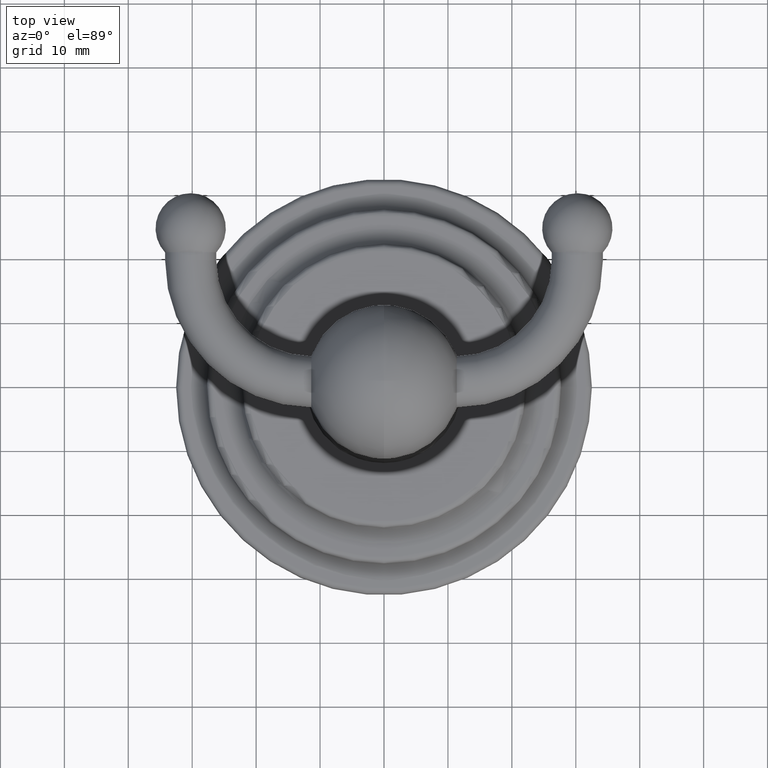
[diagram: clean part render]
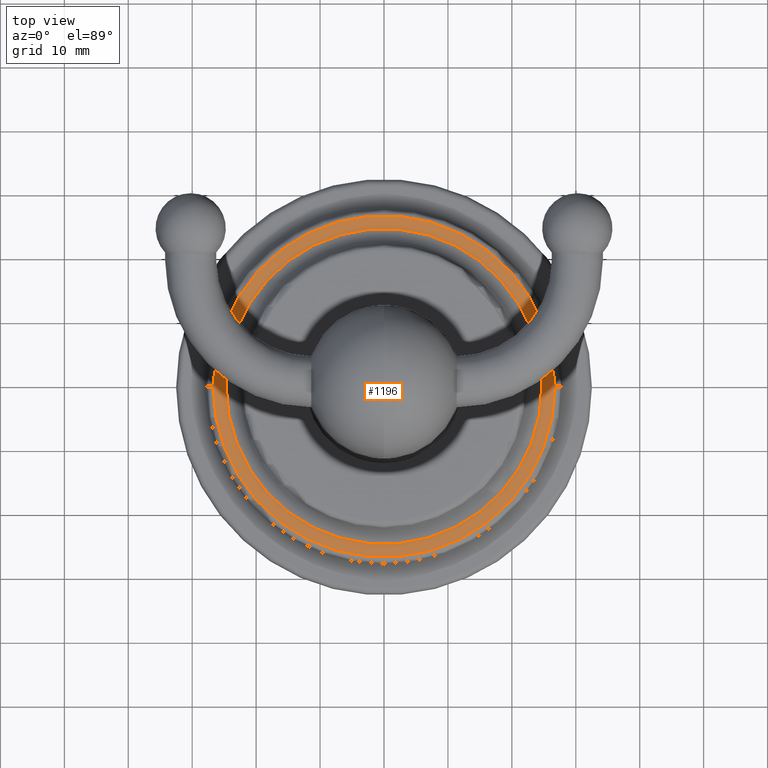
[diagram: same view with one face highlighted and labeled with its STEP entity id]
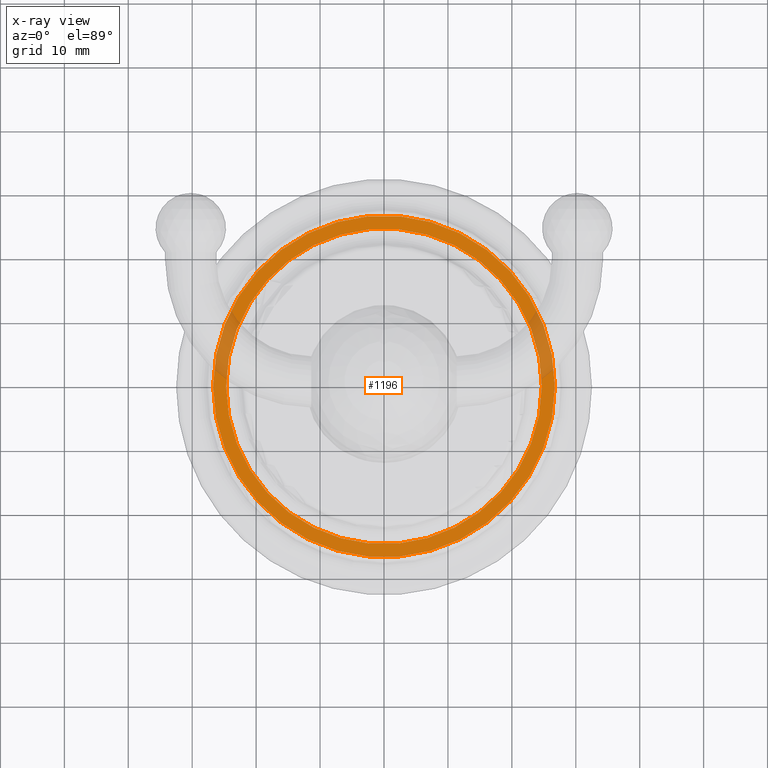
[diagram: x-ray of the same camera — body ghosted, the highlighted face saturated]
A machine part, top view. The second image highlights one B-rep face of the part: STEP entity #1196.
The next image is the same camera in x-ray: the body ghosted, the highlighted face saturated — about 12% of this face is hidden behind the body in this view.
In plain terms, the highlighted planar face has unit normal (0, 0, 1).
Its self-contained STEP definition (entity closure, byte-faithful):
#292=CARTESIAN_POINT('',(1.229081020560E-14,0.E0,3.62E-1));
#293=DIRECTION('',(0.E0,0.E0,1.E0));
#294=DIRECTION('',(1.E0,0.E0,0.E0));
#295=AXIS2_PLACEMENT_3D('',#292,#293,#294);
#300=CARTESIAN_POINT('',(1.229081020560E-14,0.E0,3.62E-1));
#301=DIRECTION('',(0.E0,0.E0,1.E0));
#302=DIRECTION('',(-1.E0,0.E0,0.E0));
#303=AXIS2_PLACEMENT_3D('',#300,#301,#302);
#354=CARTESIAN_POINT('',(1.229081020560E-14,0.E0,3.62E-1));
#355=DIRECTION('',(0.E0,0.E0,-1.E0));
#356=DIRECTION('',(1.E0,0.E0,0.E0));
#357=AXIS2_PLACEMENT_3D('',#354,#355,#356);
#370=CARTESIAN_POINT('',(1.229081020560E-14,0.E0,3.62E-1));
#371=DIRECTION('',(0.E0,0.E0,1.E0));
#372=DIRECTION('',(1.E0,0.E0,0.E0));
#373=AXIS2_PLACEMENT_3D('',#370,#371,#372);
#882=CARTESIAN_POINT('',(9.72E-1,0.E0,3.62E-1));
#884=VERTEX_POINT('',#882);
#890=CARTESIAN_POINT('',(-9.72E-1,0.E0,3.62E-1));
#892=VERTEX_POINT('',#890);
#906=CARTESIAN_POINT('',(1.052E0,0.E0,3.62E-1));
#907=CARTESIAN_POINT('',(-1.052E0,0.E0,3.62E-1));
#908=VERTEX_POINT('',#906);
#909=VERTEX_POINT('',#907);
#1180=CARTESIAN_POINT('',(1.229081020560E-14,0.E0,3.62E-1));
#1181=DIRECTION('',(0.E0,0.E0,1.E0));
#1182=DIRECTION('',(1.E0,0.E0,0.E0));
#1183=AXIS2_PLACEMENT_3D('',#1180,#1181,#1182);
#1184=PLANE('',#1183);
#1185=ORIENTED_EDGE('',*,*,#1163,.F.);
#1187=ORIENTED_EDGE('',*,*,#1186,.F.);
#1188=EDGE_LOOP('',(#1185,#1187));
#1189=FACE_OUTER_BOUND('',#1188,.F.);
#1191=ORIENTED_EDGE('',*,*,#1190,.F.);
#1193=ORIENTED_EDGE('',*,*,#1192,.T.);
#1194=EDGE_LOOP('',(#1191,#1193));
#1195=FACE_BOUND('',#1194,.F.);
#296=CIRCLE('',#295,1.052E0);
#304=CIRCLE('',#303,1.052E0);
#358=CIRCLE('',#357,9.72E-1);
#374=CIRCLE('',#373,9.72E-1);
#1163=EDGE_CURVE('',#908,#909,#296,.T.);
#1186=EDGE_CURVE('',#909,#908,#304,.T.);
#1190=EDGE_CURVE('',#884,#892,#358,.T.);
#1192=EDGE_CURVE('',#884,#892,#374,.T.);
#1196=ADVANCED_FACE('',(#1189,#1195),#1184,.T.);